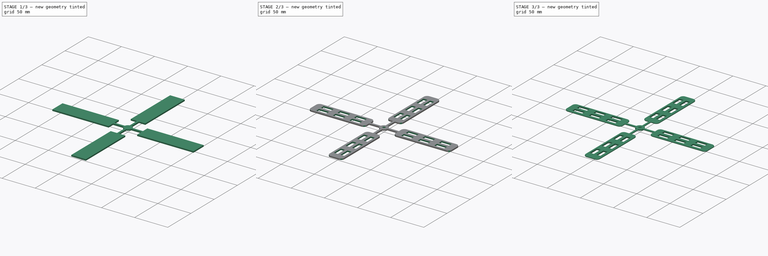
[diagram: build sequence overview — one tinted view per stage of 3, left to right]
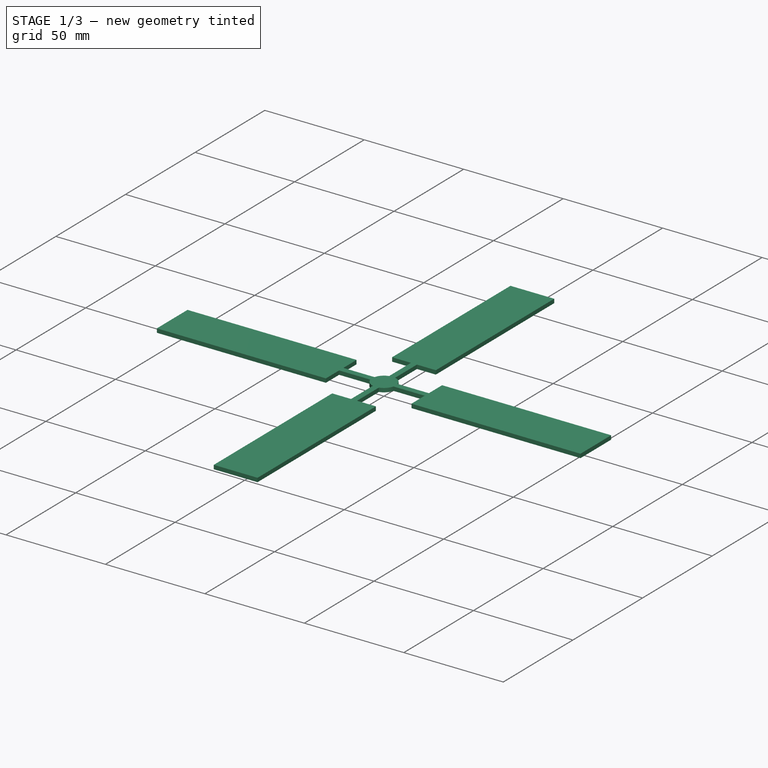
[diagram: stage 1 of 3 — iso view after this stage's code; geometry added in this stage tinted green]
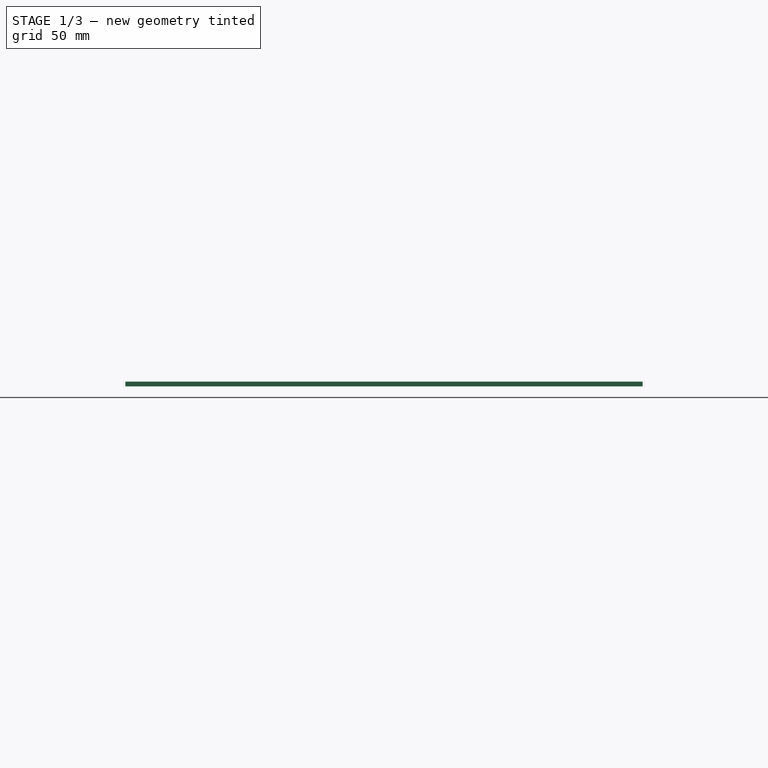
[diagram: stage 1 of 3 — front view after this stage's code; geometry added in this stage tinted green]
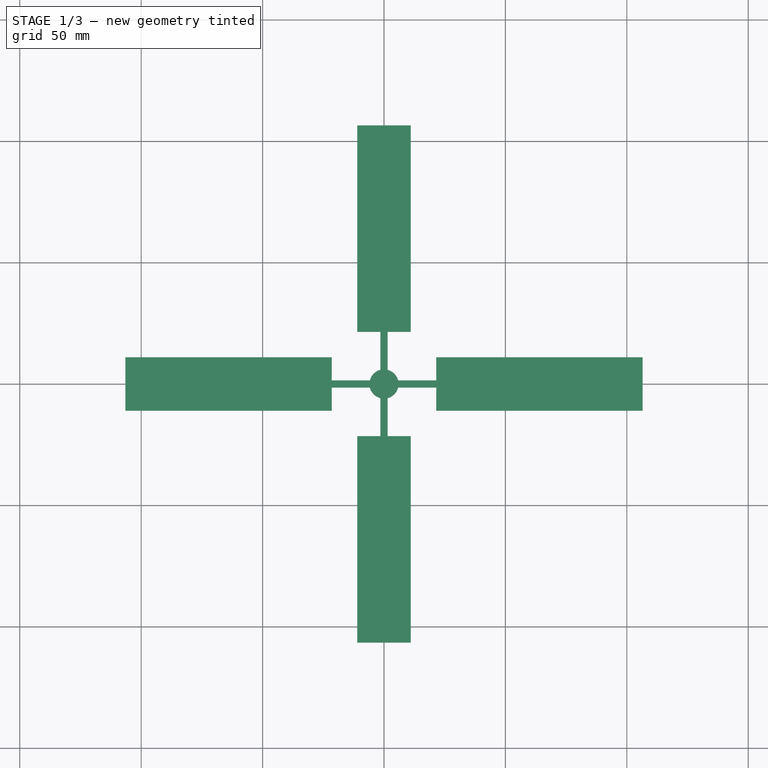
[diagram: stage 1 of 3 — top view after this stage's code; geometry added in this stage tinted green]
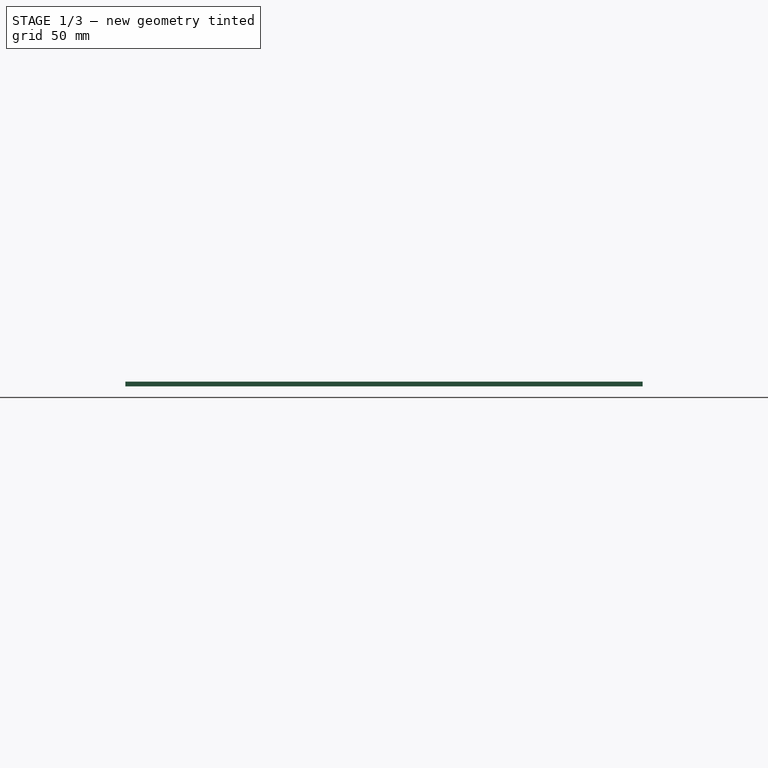
[diagram: stage 1 of 3 — right view after this stage's code; geometry added in this stage tinted green]
FCSTD DOCUMENT  (FreeCAD 0.20R29177 +426 (Git))
Label: 北欧风车摆件-叶片
License: All rights reserved
LicenseURL: http://en.wikipedia.org/wiki/All_rights_reserved
objects: Sketcher::SketchObject×4, PartDesign::Fillet×3, PartDesign::Pad×2, PartDesign::Pocket×2, PartDesign::Body×1
note: 19 computed .brp shape members not serialized (recipe doc carries the construction recipe); baked Part::Feature solids carry a one-line shape summary decoded from their .brp

FEATURE [Sketcher::SketchObject] Sketch
  FullyConstrained = true
  MapMode = 5
  Support = -> [XY_Plane]
  sketch-geometry (28):
    g0: LineSegment StartX=-106.5 StartY=11 StartZ=0 EndX=-106.5 EndY=-11 EndZ=0
    g1: LineSegment StartX=-106.5 StartY=-11 StartZ=0 EndX=-21.5 EndY=-11 EndZ=0
    g2: LineSegment StartX=-21.5 StartY=-11 StartZ=0 EndX=-21.5 EndY=-1.5 EndZ=0
    g3: LineSegment StartX=-21.5 StartY=-1.5 StartZ=0 EndX=-1.5 EndY=-1.5 EndZ=0
    g4: LineSegment StartX=-1.5 StartY=-1.5 StartZ=0 EndX=-1.5 EndY=-21.5 EndZ=0
    g5: LineSegment StartX=-1.5 StartY=-21.5 StartZ=0 EndX=-11 EndY=-21.5 EndZ=0
    g6: LineSegment StartX=-11 StartY=-21.5 StartZ=0 EndX=-11 EndY=-106.5 EndZ=0
    g7: LineSegment StartX=-11 StartY=-106.5 StartZ=0 EndX=11 EndY=-106.5 EndZ=0
    g8: LineSegment StartX=11 StartY=-106.5 StartZ=0 EndX=11 EndY=-21.5 EndZ=0
    g9: LineSegment StartX=11 StartY=-21.5 StartZ=0 EndX=1.5 EndY=-21.5 EndZ=0
    g10: LineSegment StartX=1.5 StartY=-21.5 StartZ=0 EndX=1.5 EndY=-1.5 EndZ=0
    g11: LineSegment StartX=1.5 StartY=-1.5 StartZ=0 EndX=21.5 EndY=-1.5 EndZ=0
    g12: LineSegment StartX=21.5 StartY=-1.5 StartZ=0 EndX=21.5 EndY=-11 EndZ=0
    g13: LineSegment StartX=21.5 StartY=-11 StartZ=0 EndX=106.5 EndY=-11 EndZ=0
    g14: LineSegment StartX=106.5 StartY=-11 StartZ=0 EndX=106.5 EndY=11 EndZ=0
    g15: LineSegment StartX=106.5 StartY=11 StartZ=0 EndX=21.5 EndY=11 EndZ=0
    g16: LineSegment StartX=21.5 StartY=11 StartZ=0 EndX=21.5 EndY=1.5 EndZ=0
    g17: LineSegment StartX=21.5 StartY=1.5 StartZ=0 EndX=1.5 EndY=1.5 EndZ=0
    g18: LineSegment StartX=1.5 StartY=1.5 StartZ=0 EndX=1.5 EndY=21.5 EndZ=0
    g19: LineSegment StartX=1.5 StartY=21.5 StartZ=0 EndX=11 EndY=21.5 EndZ=0
    g20: LineSegment StartX=11 StartY=21.5 StartZ=0 EndX=11 EndY=106.5 EndZ=0
    g21: LineSegment StartX=11 StartY=106.5 StartZ=0 EndX=-11 EndY=106.5 EndZ=0
    g22: LineSegment StartX=-11 StartY=106.5 StartZ=0 EndX=-11 EndY=21.5 EndZ=0
    g23: LineSegment StartX=-11 StartY=21.5 StartZ=0 EndX=-1.5 EndY=21.5 EndZ=0
    g24: LineSegment StartX=-1.5 StartY=21.5 StartZ=0 EndX=-1.5 EndY=1.5 EndZ=0
    g25: LineSegment StartX=-1.5 StartY=1.5 StartZ=0 EndX=-21.5 EndY=1.5 EndZ=0
    g26: LineSegment StartX=-21.5 StartY=1.5 StartZ=0 EndX=-21.5 EndY=11 EndZ=0
    g27: LineSegment StartX=-21.5 StartY=11 StartZ=0 EndX=-106.5 EndY=11 EndZ=0
  constraints (83):
    c: Vertical(g0)
    c: Coincident(g0,g1)
    c: Horizontal(g1)
    c: Coincident(g1,g2)
    c: Vertical(g2)
    c: Coincident(g2,g3)
    c: Horizontal(g3)
    c: Coincident(g3,g4)
    c: Vertical(g4)
    c: Coincident(g4,g5)
    c: Coincident(g5,g6)
    c: Vertical(g6)
    c: Coincident(g6,g7)
    c: Horizontal(g7)
    c: Coincident(g7,g8)
    c: Vertical(g8)
    c: Coincident(g8,g9)
    c: Coincident(g9,g10)
    c: Coincident(g10,g11)
    c: Horizontal(g11)
    c: Coincident(g11,g12)
    c: Vertical(g12)
    c: Coincident(g12,g13)
    c: Horizontal(g13)
    c: Coincident(g13,g14)
    c: Vertical(g14)
    c: Coincident(g14,g15)
    c: Coincident(g15,g16)
    c: Coincident(g16,g17)
    c: Coincident(g17,g18)
    c: Vertical(g18)
    c: Coincident(g18,g19)
    c: Horizontal(g19)
    c: Coincident(g19,g20)
    c: Vertical(g20)
    c: Coincident(g20,g21)
    c: Horizontal(g21)
    c: Coincident(g21,g22)
    c: Vertical(g22)
    c: Coincident(g22,g23)
    c: Horizontal(g23)
    c: Coincident(g23,g24)
    c: Vertical(g24)
    c: Coincident(g24,g25)
    c: Horizontal(g25)
    c: Coincident(g25,g26)
    c: Vertical(g26)
    c: Coincident(g26,g27)
    c: Coincident(g27,g0)
    c: Horizontal(g17)
    c: Vertical(g16)
    c: Horizontal(g15)
    c: Horizontal(g27)
    c: Horizontal(g9)
    c: Horizontal(g5)
    c: Vertical(g10)
    c: Equal(g6,g8)
    c: Equal(g8,g13)
    c: Equal(g13,g15)
    c: Equal(g15,g20)
    c: Equal(g20,g22)
    c: Equal(g22,g27)
    c: Equal(g27,g1)
    c: Equal(g0,g21)
    c: Equal(g21,g7)
    c: Equal(g7,g14)
    c: Equal(g25,g24)
    c: Equal(g24,g18)
    c: Equal(g18,g17)
    c: Equal(g17,g11)
    c: Equal(g11,g10)
    c: Equal(g10,g4)
    c: Equal(g4,g3)
    c: Equal(g9,g5)
    c: Equal(g2,g26)
    c: Equal(g12,g16)
    c: Equal(g19,g23)
    c: Symmetric(g17,g3,g-1)
    c: Distance(g4,g9) = 3
    c: Distance(g10,g17) = 3
    c: DistanceX(g3,g3) = 20
    c: DistanceY(g8,g8) = 85
    c: DistanceY(g0,g0) = 22
FEATURE [PartDesign::Pad] Pad
  Direction = (0,0,1)
  Length = 2
  Length2 = 10
  Profile = -> Sketch
  ReferenceAxis = -> Sketch [N_Axis]
  Type = 0
FEATURE [Sketcher::SketchObject] Sketch001
  FullyConstrained = true
  MapMode = 5
  Placement = pos=(0,0,2) rot=(0,0,1;0rad)
  Support = -> [Pad]
  sketch-geometry (1):
    g0: Circle CenterX=0 CenterY=0 CenterZ=0 NormalX=0 NormalY=0 NormalZ=1 AngleXU=0 Radius=6
  constraints (2):
    c: Coincident(g0,g-1)
    c: Diameter(g0) = 12
FEATURE [PartDesign::Pad] Pad001
  BaseFeature = -> Pad
  Direction = (0,0,1)
  Length = 2
  Length2 = 10
  Profile = -> Sketch001
  ReferenceAxis = -> Sketch001 [N_Axis]
  Reversed = true
  Type = 0
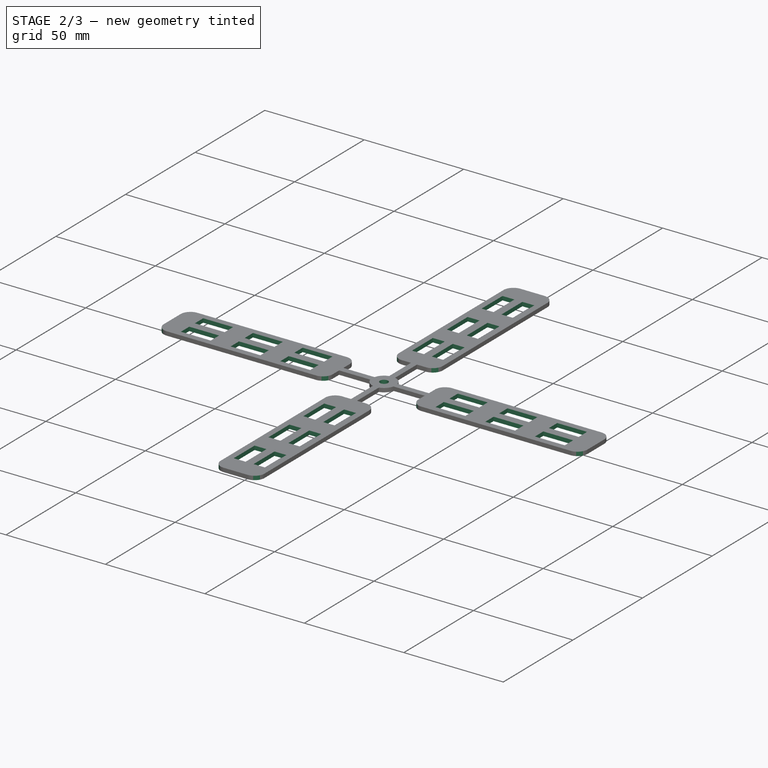
[diagram: stage 2 of 3 — iso view after this stage's code; geometry added in this stage tinted green]
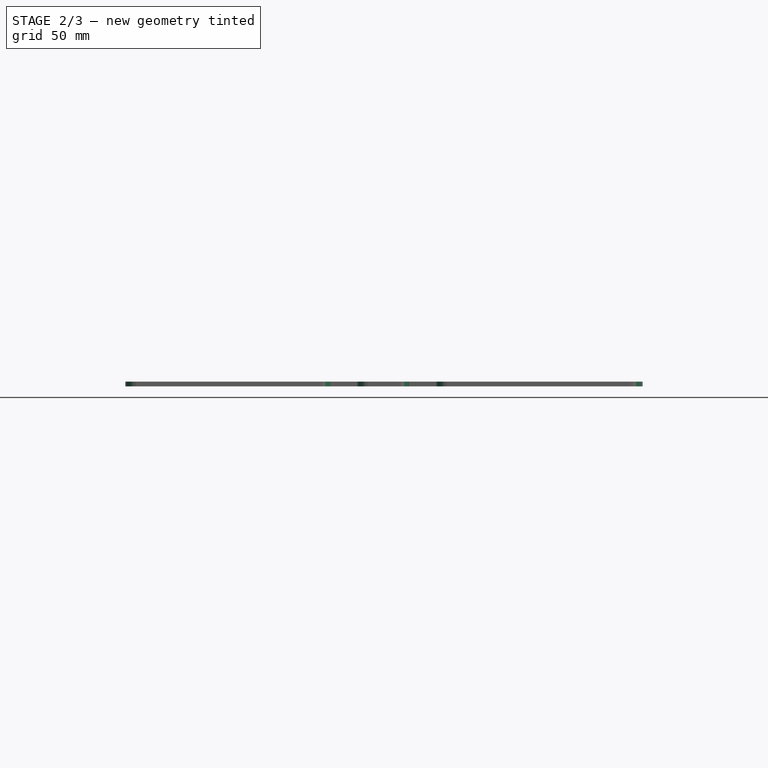
[diagram: stage 2 of 3 — front view after this stage's code; geometry added in this stage tinted green]
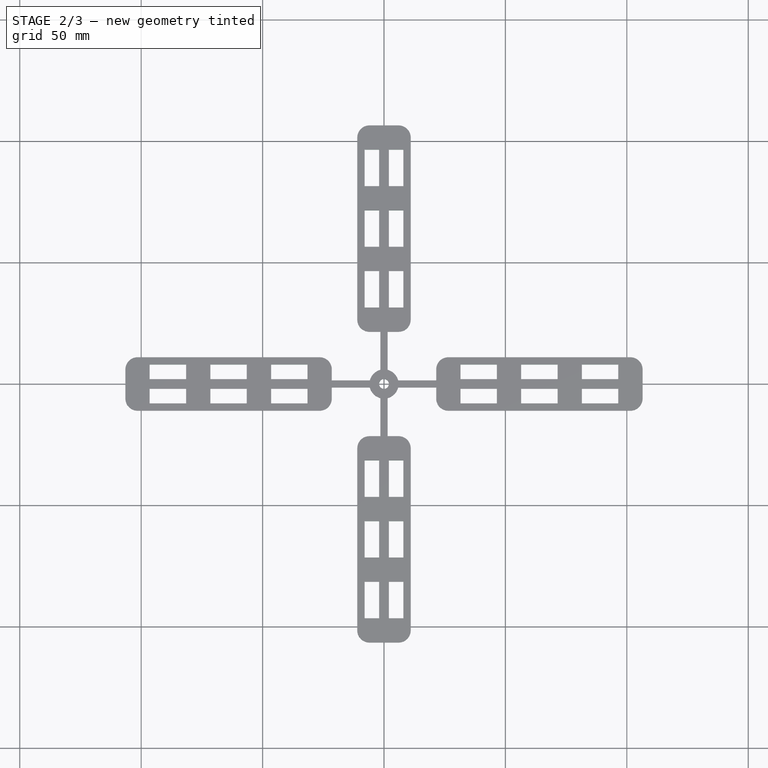
[diagram: stage 2 of 3 — top view after this stage's code; geometry added in this stage tinted green]
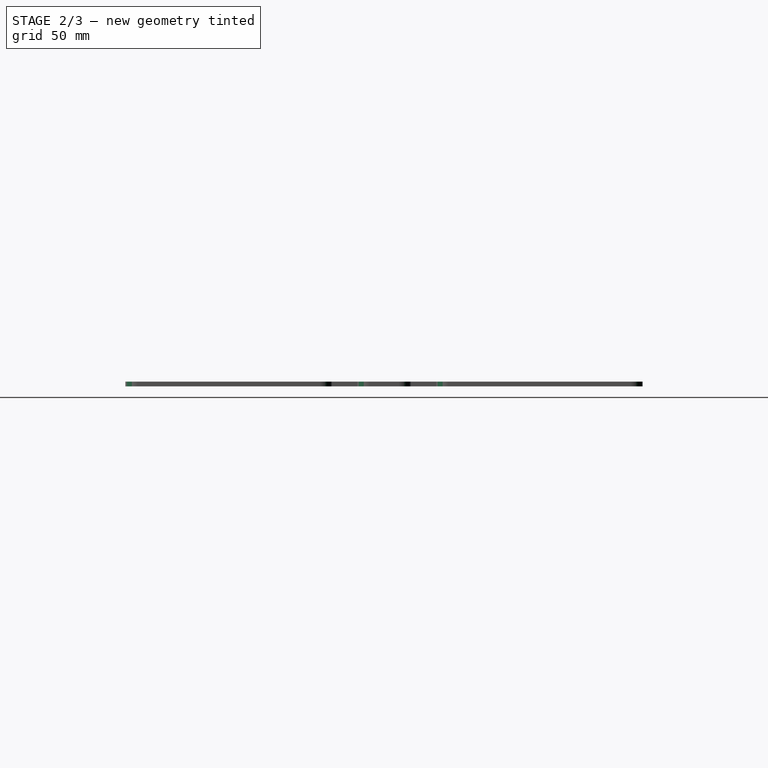
[diagram: stage 2 of 3 — right view after this stage's code; geometry added in this stage tinted green]
FEATURE [Sketcher::SketchObject] Sketch002
  FullyConstrained = true
  MapMode = 5
  Placement = pos=(0,0,0) rot=(1,0,0;3.14159rad)
  Support = -> [Pad001]
  sketch-geometry (1):
    g0: Circle CenterX=0 CenterY=0 CenterZ=0 NormalX=0 NormalY=0 NormalZ=1 AngleXU=0 Radius=2
  constraints (2):
    c: Coincident(g0,g-1)
    c: Diameter(g0) = 4
FEATURE [PartDesign::Pocket] Pocket
  BaseFeature = -> Pad001
  Direction = (0,0,1)
  Length = 5
  Length2 = 5
  Profile = -> Sketch002
  ReferenceAxis = -> Sketch002 [N_Axis]
  Type = 1
FEATURE [Sketcher::SketchObject] Sketch003
  ExternalGeometry = -> [Pocket]
  FullyConstrained = true
  MapMode = 5
  Placement = pos=(0,0,0) rot=(1,0,0;3.14159rad)
  Support = -> [Pocket]
  sketch-geometry (96):
    g0: LineSegment StartX=-96.5 StartY=8 StartZ=0 EndX=-81.5 EndY=8 EndZ=0
    g1: LineSegment StartX=-81.5 StartY=8 StartZ=0 EndX=-81.5 EndY=2 EndZ=0
    g2: LineSegment StartX=-81.5 StartY=2 StartZ=0 EndX=-96.5 EndY=2 EndZ=0
    g3: LineSegment StartX=-96.5 StartY=2 StartZ=0 EndX=-96.5 EndY=8 EndZ=0
    g4: LineSegment StartX=-96.5 StartY=-2 StartZ=0 EndX=-81.5 EndY=-2 EndZ=0
    g5: LineSegment StartX=-81.5 StartY=-2 StartZ=0 EndX=-81.5 EndY=-8 EndZ=0
    g6: LineSegment StartX=-81.5 StartY=-8 StartZ=0 EndX=-96.5 EndY=-8 EndZ=0
    g7: LineSegment StartX=-96.5 StartY=-8 StartZ=0 EndX=-96.5 EndY=-2 EndZ=0
    g8: LineSegment StartX=-71.5 StartY=-2 StartZ=0 EndX=-56.5 EndY=-2 EndZ=0
    g9: LineSegment StartX=-56.5 StartY=-2 StartZ=0 EndX=-56.5 EndY=-8 EndZ=0
    g10: LineSegment StartX=-56.5 StartY=-8 StartZ=0 EndX=-71.5 EndY=-8 EndZ=0
    g11: LineSegment StartX=-71.5 StartY=-8 StartZ=0 EndX=-71.5 EndY=-2 EndZ=0
    g12: LineSegment StartX=-71.5 StartY=8 StartZ=0 EndX=-56.5 EndY=8 EndZ=0
    g13: LineSegment StartX=-56.5 StartY=8 StartZ=0 EndX=-56.5 EndY=2 EndZ=0
    g14: LineSegment StartX=-56.5 StartY=2 StartZ=0 EndX=-71.5 EndY=2 EndZ=0
    g15: LineSegment StartX=-71.5 StartY=2 StartZ=0 EndX=-71.5 EndY=8 EndZ=0
    g16: LineSegment StartX=-46.5 StartY=8 StartZ=0 EndX=-31.5 EndY=8 EndZ=0
    g17: LineSegment StartX=-31.5 StartY=8 StartZ=0 EndX=-31.5 EndY=2 EndZ=0
    g18: LineSegment StartX=-31.5 StartY=2 StartZ=0 EndX=-46.5 EndY=2 EndZ=0
    g19: LineSegment StartX=-46.5 StartY=2 StartZ=0 EndX=-46.5 EndY=8 EndZ=0
    g20: LineSegment StartX=-46.5 StartY=-2 StartZ=0 EndX=-31.5 EndY=-2 EndZ=0
    g21: LineSegment StartX=-31.5 StartY=-2 StartZ=0 EndX=-31.5 EndY=-8 EndZ=0
    g22: LineSegment StartX=-31.5 StartY=-8 StartZ=0 EndX=-46.5 EndY=-8 EndZ=0
    g23: LineSegment StartX=-46.5 StartY=-8 StartZ=0 EndX=-46.5 EndY=-2 EndZ=0
    g24: LineSegment StartX=31.5 StartY=8 StartZ=0 EndX=46.5 EndY=8 EndZ=0
    g25: LineSegment StartX=46.5 StartY=8 StartZ=0 EndX=46.5 EndY=2 EndZ=0
    g26: LineSegment StartX=46.5 StartY=2 StartZ=0 EndX=31.5 EndY=2 EndZ=0
    g27: LineSegment StartX=31.5 StartY=2 StartZ=0 EndX=31.5 EndY=8 EndZ=0
    g28: LineSegment StartX=31.5 StartY=-2 StartZ=0 EndX=46.5 EndY=-2 EndZ=0
    g29: LineSegment StartX=46.5 StartY=-2 StartZ=0 EndX=46.5 EndY=-8 EndZ=0
    g30: LineSegment StartX=46.5 StartY=-8 StartZ=0 EndX=31.5 EndY=-8 EndZ=0
    g31: LineSegment StartX=31.5 StartY=-8 StartZ=0 EndX=31.5 EndY=-2 EndZ=0
    g32: LineSegment StartX=56.5 StartY=-2 StartZ=0 EndX=71.5 EndY=-2 EndZ=0
    g33: LineSegment StartX=71.5 StartY=-2 StartZ=0 EndX=71.5 EndY=-8 EndZ=0
    g34: LineSegment StartX=71.5 StartY=-8 StartZ=0 EndX=56.5 EndY=-8 EndZ=0
    g35: LineSegment StartX=56.5 StartY=-8 StartZ=0 EndX=56.5 EndY=-2 EndZ=0
    g36: LineSegment StartX=56.5 StartY=8 StartZ=0 EndX=71.5 EndY=8 EndZ=0
    g37: LineSegment StartX=71.5 StartY=8 StartZ=0 EndX=71.5 EndY=2 EndZ=0
    g38: LineSegment StartX=71.5 StartY=2 StartZ=0 EndX=56.5 EndY=2 EndZ=0
    g39: LineSegment StartX=56.5 StartY=2 StartZ=0 EndX=56.5 EndY=8 EndZ=0
    g40: LineSegment StartX=81.5 StartY=8 StartZ=0 EndX=96.5 EndY=8 EndZ=0
    g41: LineSegment StartX=96.5 StartY=8 StartZ=0 EndX=96.5 EndY=2 EndZ=0
    g42: LineSegment StartX=96.5 StartY=2 StartZ=0 EndX=81.5 EndY=2 EndZ=0
    g43: LineSegment StartX=81.5 StartY=2 StartZ=0 EndX=81.5 EndY=8 EndZ=0
    g44: LineSegment StartX=81.5 StartY=-2 StartZ=0 EndX=96.5 EndY=-2 EndZ=0
    g45: LineSegment StartX=96.5 StartY=-2 StartZ=0 EndX=96.5 EndY=-8 EndZ=0
    g46: LineSegment StartX=96.5 StartY=-8 StartZ=0 EndX=81.5 EndY=-8 EndZ=0
    g47: LineSegment StartX=81.5 StartY=-8 StartZ=0 EndX=81.5 EndY=-2 EndZ=0
    g48: LineSegment StartX=-8 StartY=46.5 StartZ=0 EndX=-2 EndY=46.5 EndZ=0
    g49: LineSegment StartX=-2 StartY=46.5 StartZ=0 EndX=-2 EndY=31.5 EndZ=0
    g50: LineSegment StartX=-2 StartY=31.5 StartZ=0 EndX=-8 EndY=31.5 EndZ=0
    g51: LineSegment StartX=-8 StartY=31.5 StartZ=0 EndX=-8 EndY=46.5 EndZ=0
    g52: LineSegment StartX=2 StartY=46.5 StartZ=0 EndX=8 EndY=46.5 EndZ=0
    g53: LineSegment StartX=8 StartY=46.5 StartZ=0 EndX=8 EndY=31.5 EndZ=0
    g54: LineSegment StartX=8 StartY=31.5 StartZ=0 EndX=2 EndY=31.5 EndZ=0
    g55: LineSegment StartX=2 StartY=31.5 StartZ=0 EndX=2 EndY=46.5 EndZ=0
    g56: LineSegment StartX=-8 StartY=71.5 StartZ=0 EndX=-2 EndY=71.5 EndZ=0
    g57: LineSegment StartX=-2 StartY=71.5 StartZ=0 EndX=-2 EndY=56.5 EndZ=0
    g58: LineSegment StartX=-2 StartY=56.5 StartZ=0 EndX=-8 EndY=56.5 EndZ=0
    g59: LineSegment StartX=-8 StartY=56.5 StartZ=0 EndX=-8 EndY=71.5 EndZ=0
    g60: LineSegment StartX=2 StartY=71.5 StartZ=0 EndX=8 EndY=71.5 EndZ=0
    g61: LineSegment StartX=8 StartY=71.5 StartZ=0 EndX=8 EndY=56.5 EndZ=0
    g62: LineSegment StartX=8 StartY=56.5 StartZ=0 EndX=2 EndY=56.5 EndZ=0
    g63: LineSegment StartX=2 StartY=56.5 StartZ=0 EndX=2 EndY=71.5 EndZ=0
    g64: LineSegment StartX=-8 StartY=96.5 StartZ=0 EndX=-2 EndY=96.5 EndZ=0
    g65: LineSegment StartX=-2 StartY=96.5 StartZ=0 EndX=-2 EndY=81.5 EndZ=0
    g66: LineSegment StartX=-2 StartY=81.5 StartZ=0 EndX=-8 EndY=81.5 EndZ=0
    g67: LineSegment StartX=-8 StartY=81.5 StartZ=0 EndX=-8 EndY=96.5 EndZ=0
    g68: LineSegment StartX=2 StartY=96.5 StartZ=0 EndX=8 EndY=96.5 EndZ=0
    g69: LineSegment StartX=8 StartY=96.5 StartZ=0 EndX=8 EndY=81.5 EndZ=0
    g70: LineSegment StartX=8 StartY=81.5 StartZ=0 EndX=2 EndY=81.5 EndZ=0
    g71: LineSegment StartX=2 StartY=81.5 StartZ=0 EndX=2 EndY=96.5 EndZ=0
    g72: LineSegment StartX=-8 StartY=-81.5 StartZ=0 EndX=-2 EndY=-81.5 EndZ=0
    g73: LineSegment StartX=-2 StartY=-81.5 StartZ=0 EndX=-2 EndY=-96.5 EndZ=0
    g74: LineSegment StartX=-2 StartY=-96.5 StartZ=0 EndX=-8 EndY=-96.5 EndZ=0
    g75: LineSegment StartX=-8 StartY=-96.5 StartZ=0 EndX=-8 EndY=-81.5 EndZ=0
    g76: LineSegment StartX=2 StartY=-81.5 StartZ=0 EndX=8 EndY=-81.5 EndZ=0
    g77: LineSegment StartX=8 StartY=-81.5 StartZ=0 EndX=8 EndY=-96.5 EndZ=0
    g78: LineSegment StartX=8 StartY=-96.5 StartZ=0 EndX=2 EndY=-96.5 EndZ=0
    g79: LineSegment StartX=2 StartY=-96.5 StartZ=0 EndX=2 EndY=-81.5 EndZ=0
    g80: LineSegment StartX=-8 StartY=-56.5 StartZ=0 EndX=-2 EndY=-56.5 EndZ=0
    g81: LineSegment StartX=-2 StartY=-56.5 StartZ=0 EndX=-2 EndY=-71.5 EndZ=0
    g82: LineSegment StartX=-2 StartY=-71.5 StartZ=0 EndX=-8 EndY=-71.5 EndZ=0
    g83: LineSegment StartX=-8 StartY=-71.5 StartZ=0 EndX=-8 EndY=-56.5 EndZ=0
    g84: LineSegment StartX=2 StartY=-56.5 StartZ=0 EndX=8 EndY=-56.5 EndZ=0
    g85: LineSegment StartX=8 StartY=-56.5 StartZ=0 EndX=8 EndY=-71.5 EndZ=0
    g86: LineSegment StartX=8 StartY=-71.5 StartZ=0 EndX=2 EndY=-71.5 EndZ=0
    g87: LineSegment StartX=2 StartY=-71.5 StartZ=0 EndX=2 EndY=-56.5 EndZ=0
    g88: LineSegment StartX=-8 StartY=-31.5 StartZ=0 EndX=-2 EndY=-31.5 EndZ=0
    g89: LineSegment StartX=-2 StartY=-31.5 StartZ=0 EndX=-2 EndY=-46.5 EndZ=0
    g90: LineSegment StartX=-2 StartY=-46.5 StartZ=0 EndX=-8 EndY=-46.5 EndZ=0
    g91: LineSegment StartX=-8 StartY=-46.5 StartZ=0 EndX=-8 EndY=-31.5 EndZ=0
    g92: LineSegment StartX=2 StartY=-31.5 StartZ=0 EndX=8 EndY=-31.5 EndZ=0
    g93: LineSegment StartX=8 StartY=-31.5 StartZ=0 EndX=8 EndY=-46.5 EndZ=0
    g94: LineSegment StartX=8 StartY=-46.5 StartZ=0 EndX=2 EndY=-46.5 EndZ=0
    g95: LineSegment StartX=2 StartY=-46.5 StartZ=0 EndX=2 EndY=-31.5 EndZ=0
  constraints (289):
    c: Coincident(g0,g1)
    c: Coincident(g1,g2)
    c: Coincident(g2,g3)
    c: Coincident(g3,g0)
    c: Horizontal(g0)
    c: Horizontal(g2)
    c: Vertical(g1)
    c: Vertical(g3)
    c: Coincident(g4,g5)
    c: Coincident(g5,g6)
    c: Coincident(g6,g7)
    c: Coincident(g7,g4)
    c: Horizontal(g4)
    c: Horizontal(g6)
    c: Vertical(g5)
    c: Vertical(g7)
    c: Coincident(g8,g9)
    c: Coincident(g9,g10)
    c: Coincident(g10,g11)
    c: Coincident(g11,g8)
    c: Horizontal(g8)
    c: Horizontal(g10)
    c: Vertical(g9)
    c: Vertical(g11)
    c: Coincident(g12,g13)
    c: Coincident(g13,g14)
    c: Coincident(g14,g15)
    c: Coincident(g15,g12)
    c: Horizontal(g12)
    c: Horizontal(g14)
    c: Vertical(g13)
    c: Vertical(g15)
    c: Coincident(g16,g17)
    c: Coincident(g17,g18)
    c: Coincident(g18,g19)
    c: Coincident(g19,g16)
    c: Horizontal(g16)
    c: Horizontal(g18)
    c: Vertical(g17)
    c: Vertical(g19)
    c: Coincident(g20,g21)
    c: Coincident(g21,g22)
    c: Coincident(g22,g23)
    c: Coincident(g23,g20)
    c: Horizontal(g20)
    c: Horizontal(g22)
    c: Vertical(g21)
    c: Vertical(g23)
    c: Equal(g4,g2)
    c: Equal(g2,g14)
    c: Equal(g14,g8)
    c: Equal(g8,g20)
    c: Equal(g20,g18)
    c: Equal(g7,g3)
    c: Equal(g3,g15)
    c: Equal(g15,g11)
    c: Equal(g11,g23)
    c: Equal(g23,g19)
    c: Horizontal(g4,g8)
    c: Horizontal(g8,g20)
    c: Horizontal(g1,g14)
    c: Horizontal(g14,g18)
    c: Vertical(g13,g8)
    c: Vertical(g18,g20)
    c: Vertical(g4,g1)
    c: Distance(g1,g14) = 10
    c: Distance(g13,g18) = 10
    c: DistanceY(g3,g3) = 6
    c: DistanceY(g-1,g4) = -2
    c: DistanceY(g-1,g1) = 2
    c: DistanceX(g4,g4) = 15
    c: Distance(g20,g-7) = 10
    c: Coincident(g24,g25)
    c: Coincident(g25,g26)
    c: Coincident(g26,g27)
    c: Coincident(g27,g24)
    c: Horizontal(g24)
    c: Horizontal(g26)
    c: Vertical(g25)
    c: Vertical(g27)
    c: Coincident(g28,g29)
    c: Coincident(g29,g30)
    c: Coincident(g30,g31)
    c: Coincident(g31,g28)
    c: Horizontal(g28)
    c: Horizontal(g30)
    c: Vertical(g29)
    c: Vertical(g31)
    c: Coincident(g32,g33)
    c: Coincident(g33,g34)
    c: Coincident(g34,g35)
    c: Coincident(g35,g32)
    c: Horizontal(g32)
    c: Horizontal(g34)
    c: Vertical(g33)
    c: Vertical(g35)
    c: Coincident(g36,g37)
    c: Coincident(g37,g38)
    c: Coincident(g38,g39)
    c: Coincident(g39,g36)
    c: Horizontal(g36)
    c: Horizontal(g38)
    c: Vertical(g37)
    c: Vertical(g39)
    c: Coincident(g40,g41)
    c: Coincident(g41,g42)
    c: Coincident(g42,g43)
    c: Coincident(g43,g40)
    c: Horizontal(g40)
    c: Horizontal(g42)
    c: Vertical(g41)
    c: Vertical(g43)
    c: Coincident(g44,g45)
    c: Coincident(g45,g46)
    c: Coincident(g46,g47)
    c: Coincident(g47,g44)
    c: Horizontal(g44)
    c: Horizontal(g46)
    c: Vertical(g45)
    c: Vertical(g47)
    c: Equal(g28,g26)
    c: Equal(g26,g38)
    c: Equal(g38,g32)
    c: Equal(g32,g44)
    c: Equal(g44,g42)
    c: Equal(g31,g27)
    c: Equal(g27,g39)
    c: Equal(g39,g35)
    c: Equal(g35,g47)
    c: Equal(g47,g43)
    c: Horizontal(g28,g32)
    c: Horizontal(g32,g44)
    c: Horizontal(g25,g38)
    c: Horizontal(g38,g42)
    c: Vertical(g37,g32)
    c: Vertical(g42,g44)
    c: Vertical(g28,g25)
    c: Distance(g25,g38) = 10
    c: Distance(g37,g42) = 10
    c: Equal(g3,g27) = 6
    c: Equal(g4,g28) = 15
    c: Distance(g26,g-14) = 10
    c: DistanceY(g-1,g28) = -2
    c: DistanceY(g-1,g25) = 2
    c: Coincident(g48,g49)
    c: Coincident(g49,g50)
    c: Coincident(g50,g51)
    c: Coincident(g51,g48)
    c: Horizontal(g48)
    c: Horizontal(g50)
    c: Vertical(g49)
    c: Vertical(g51)
    c: Coincident(g52,g53)
    c: Coincident(g53,g54)
    c: Coincident(g54,g55)
    c: Coincident(g55,g52)
    c: Horizontal(g52)
    c: Horizontal(g54)
    c: Vertical(g53)
    c: Vertical(g55)
    c: Coincident(g56,g57)
    c: Coincident(g57,g58)
    c: Coincident(g58,g59)
    c: Coincident(g59,g56)
    c: Horizontal(g56)
    c: Horizontal(g58)
    c: Vertical(g57)
    c: Vertical(g59)
    c: Coincident(g60,g61)
    c: Coincident(g61,g62)
    c: Coincident(g62,g63)
    c: Coincident(g63,g60)
    c: Horizontal(g60)
    c: Horizontal(g62)
    c: Vertical(g61)
    c: Vertical(g63)
    c: Coincident(g64,g65)
    c: Coincident(g65,g66)
    c: Coincident(g66,g67)
    c: Coincident(g67,g64)
    c: Horizontal(g64)
    c: Horizontal(g66)
    c: Vertical(g65)
    c: Vertical(g67)
    c: Coincident(g68,g69)
    c: Coincident(g69,g70)
    c: Coincident(g70,g71)
    c: Coincident(g71,g68)
    c: Horizontal(g68)
    c: Horizontal(g70)
    c: Vertical(g69)
    c: Vertical(g71)
    c: Equal(g57,g65)
    c: Equal(g65,g71)
    c: Equal(g71,g63)
    c: Equal(g63,g55)
    c: Equal(g55,g49)
    c: Equal(g66,g70)
    c: Equal(g70,g60)
    c: Equal(g60,g56)
    c: Equal(g56,g48)
    c: Equal(g48,g52)
    c: Vertical(g48,g57)
    c: Vertical(g57,g65)
    c: Vertical(g60,g70)
    c: Vertical(g70,g52)
    c: Horizontal(g65,g70)
    c: Horizontal(g56,g60)
    c: Horizontal(g48,g52)
    c: Distance(g48,g57) = 10
    c: Distance(g65,g56) = 10
    c: Distance(g-17) = 9.5
    c: Distance(g49,g-17) = 10
    c: DistanceY(g51,g51) = 15
    c: DistanceX(g50,g50) = 6
    c: DistanceX(g-2,g54) = 2
    c: DistanceX(g-2,g49) = -2
    c: Coincident(g72,g73)
    c: Coincident(g73,g74)
    c: Coincident(g74,g75)
    c: Coincident(g75,g72)
    c: Horizontal(g72)
    c: Horizontal(g74)
    c: Vertical(g73)
    c: Vertical(g75)
    c: Coincident(g76,g77)
    c: Coincident(g77,g78)
    c: Coincident(g78,g79)
    c: Coincident(g79,g76)
    c: Horizontal(g76)
    c: Horizontal(g78)
    c: Vertical(g77)
    c: Vertical(g79)
    c: Coincident(g80,g81)
    c: Coincident(g81,g82)
    c: Coincident(g82,g83)
    c: Coincident(g83,g80)
    c: Horizontal(g80)
    c: Horizontal(g82)
    c: Vertical(g81)
    c: Vertical(g83)
    c: Coincident(g84,g85)
    c: Coincident(g85,g86)
    c: Coincident(g86,g87)
    c: Coincident(g87,g84)
    c: Horizontal(g84)
    c: Horizontal(g86)
    c: Vertical(g85)
    c: Vertical(g87)
    c: Coincident(g88,g89)
    c: Coincident(g89,g90)
    c: Coincident(g90,g91)
    c: Coincident(g91,g88)
    c: Horizontal(g88)
    c: Horizontal(g90)
    c: Vertical(g89)
    c: Vertical(g91)
    c: Coincident(g92,g93)
    c: Coincident(g93,g94)
    c: Coincident(g94,g95)
    c: Coincident(g95,g92)
    c: Horizontal(g92)
    c: Horizontal(g94)
    c: Vertical(g93)
    c: Vertical(g95)
    c: Equal(g81,g89)
    c: Equal(g89,g95)
    c: Equal(g95,g87)
    c: Equal(g87,g79)
    c: Equal(g79,g73)
    c: Equal(g90,g94)
    c: Equal(g94,g84)
    c: Equal(g84,g80)
    c: Equal(g80,g72)
    c: Equal(g72,g76)
    c: Vertical(g72,g81)
    c: Vertical(g81,g89)
    c: Vertical(g84,g94)
    c: Vertical(g94,g76)
    c: Horizontal(g89,g94)
    c: Horizontal(g80,g84)
    c: Horizontal(g72,g76)
    c: Distance(g72,g81) = 10
    c: Distance(g89,g80) = 10
    c: Equal(g51,g75) = 15
    c: Equal(g50,g74) = 6
    c: Distance(g88,g-8) = 10
    c: DistanceX(g-2,g86) = 2
    c: DistanceX(g-2,g81) = -2
FEATURE [PartDesign::Pocket] Pocket001
  BaseFeature = -> Pocket
  Direction = (0,0,1)
  Length = 5
  Length2 = 5
  Profile = -> Sketch003
  ReferenceAxis = -> Sketch003 [N_Axis]
  Type = 1
FEATURE [PartDesign::Fillet] Fillet
  Base = -> Pocket001 [Edge357,Edge358,Edge2,Edge1,Edge322,Edge326,Edge321,Edge389,Edge384,Edge8,Edge386,Edge385,Edge5,Edge355,Edge325,Edge356]
  BaseFeature = -> Pocket001
  Radius = 5
  SupportTransform = false
  UseAllEdges = false
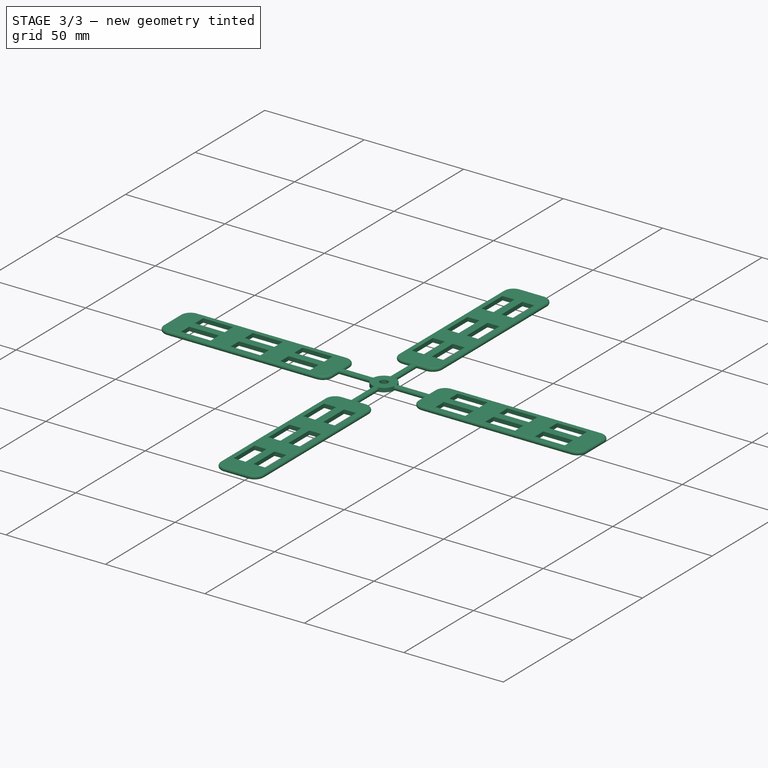
[diagram: stage 3 of 3 — iso view after this stage's code; geometry added in this stage tinted green]
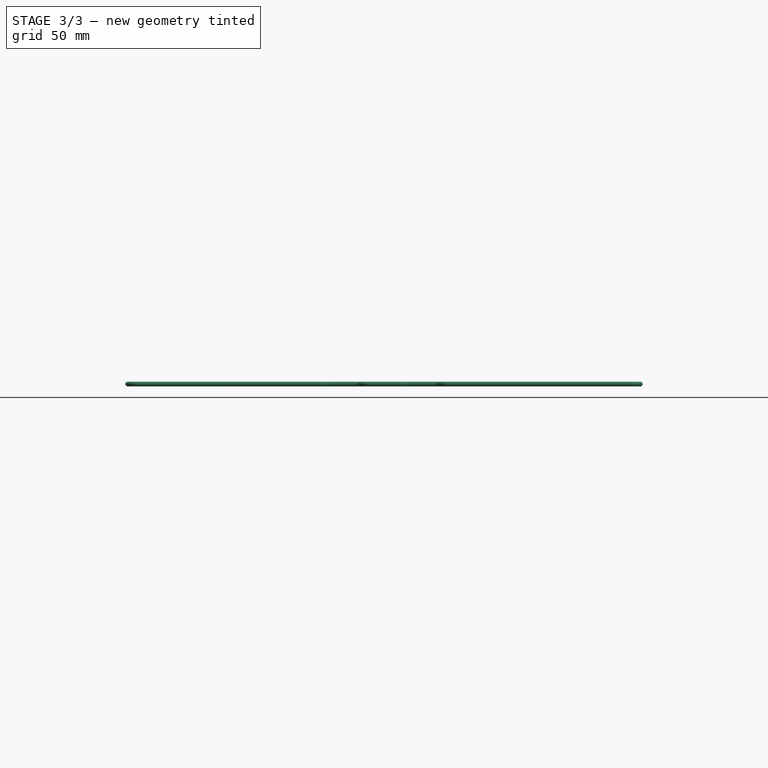
[diagram: stage 3 of 3 — front view after this stage's code; geometry added in this stage tinted green]
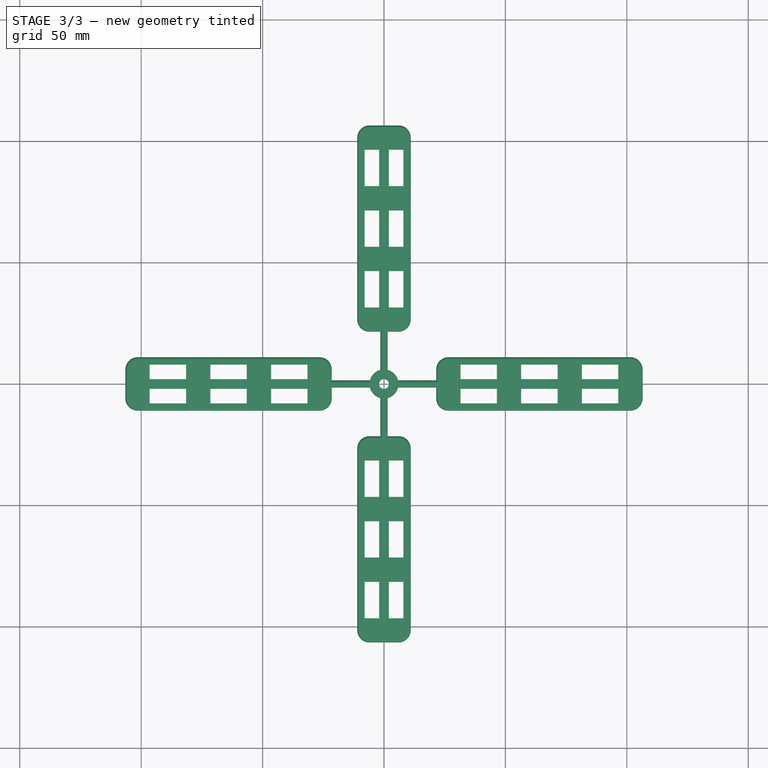
[diagram: stage 3 of 3 — top view after this stage's code; geometry added in this stage tinted green]
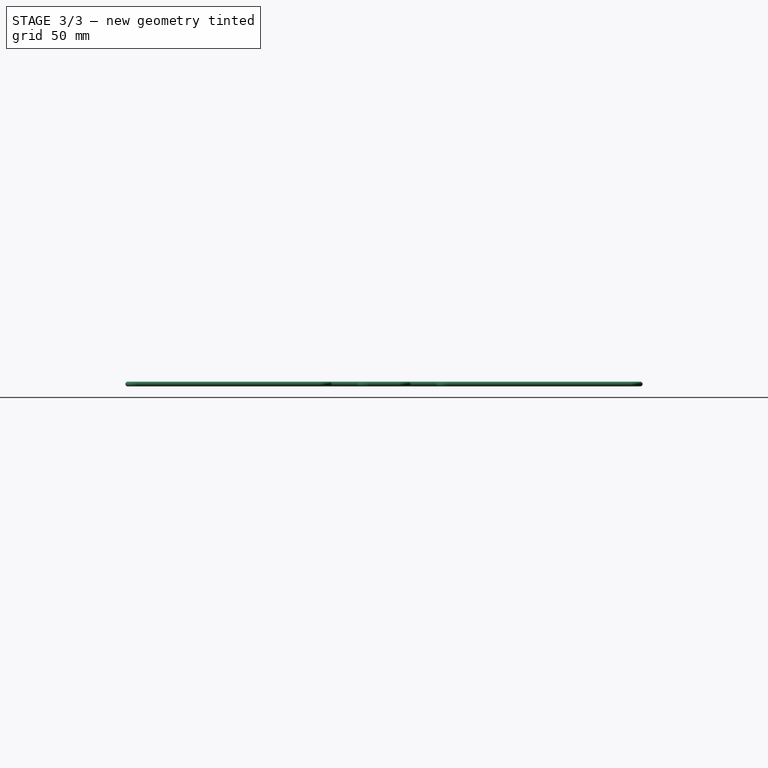
[diagram: stage 3 of 3 — right view after this stage's code; geometry added in this stage tinted green]
FEATURE [PartDesign::Fillet] Fillet001
  Base = -> Fillet [Edge323,Edge259,Edge44,Edge295,Edge322,Edge254,Edge47,Edge50,Edge290,Edge287,Edge251,Edge326]
  BaseFeature = -> Fillet
  Radius = 0.99
  SupportTransform = false
  UseAllEdges = false
FEATURE [PartDesign::Fillet] Fillet002
  Base = -> Fillet001 [Edge215,Edge212,Edge18,Edge14,Edge175,Edge178,Edge183,Edge248,Edge220,Edge17,Edge247,Edge251]
  BaseFeature = -> Fillet001
  Radius = 0.99
  SupportTransform = false
  UseAllEdges = false
FEATURE [PartDesign::Body] Body
  Group = -> [Sketch,Pad,Sketch001,Pad001,Sketch002,Pocket,Sketch003,Pocket001,Fillet,Fillet001,Fillet002]
  Origin = -> Origin
  Tip = -> Fillet002
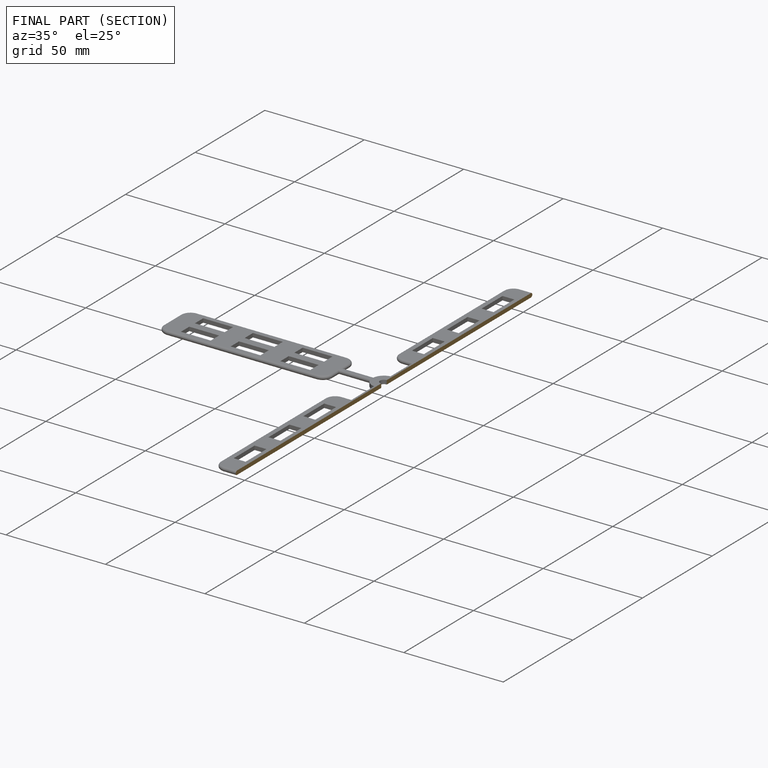
[diagram: finished part — half-section view (interior)]
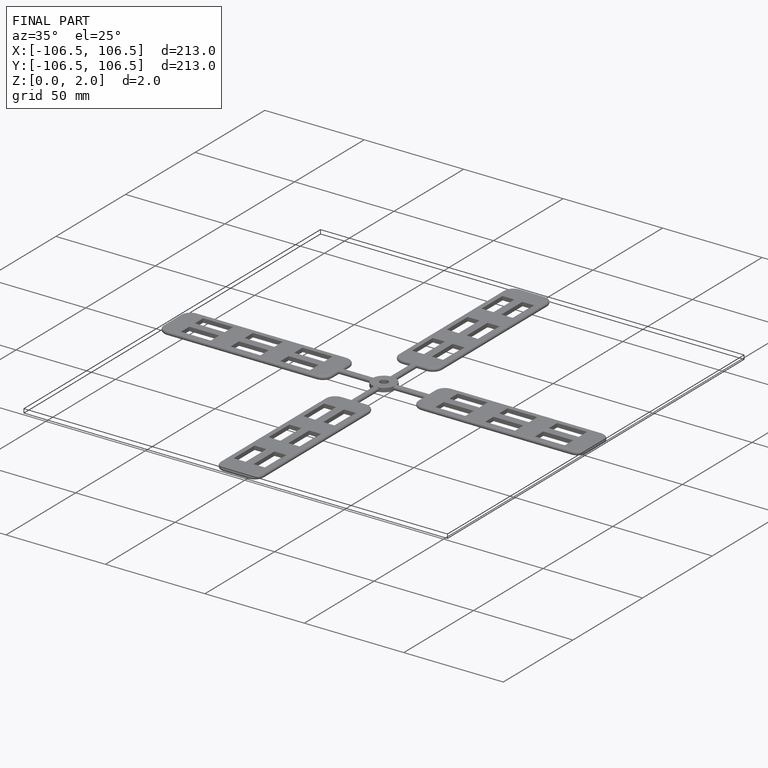
[diagram: finished part — iso view with bounding-box wireframe]
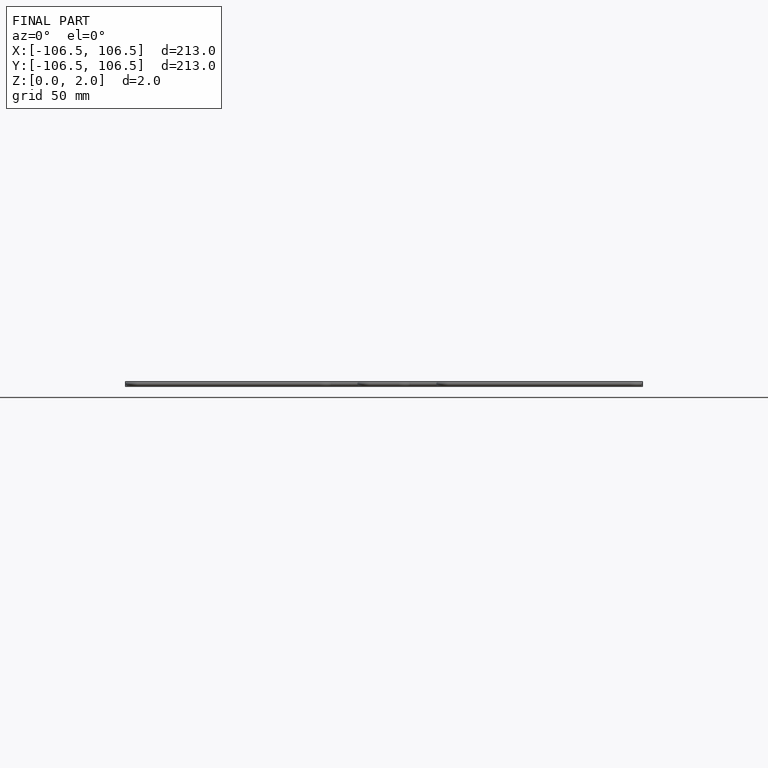
[diagram: finished part — front view with bounding-box wireframe]
